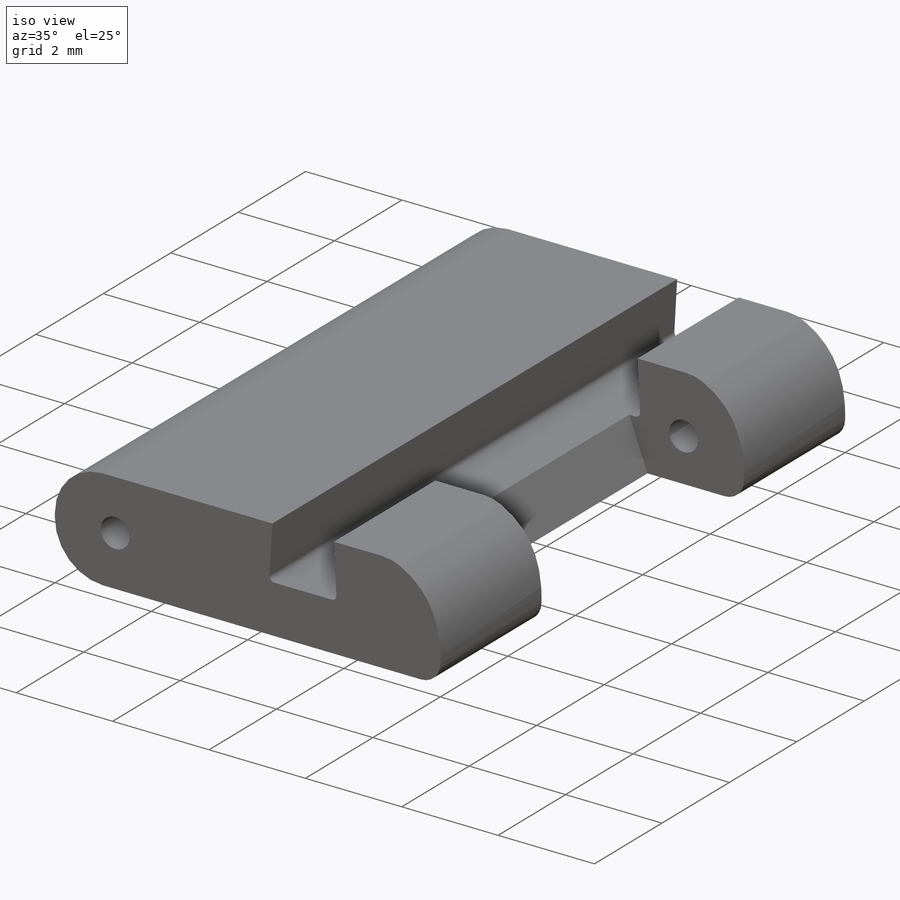
[diagram: iso view]
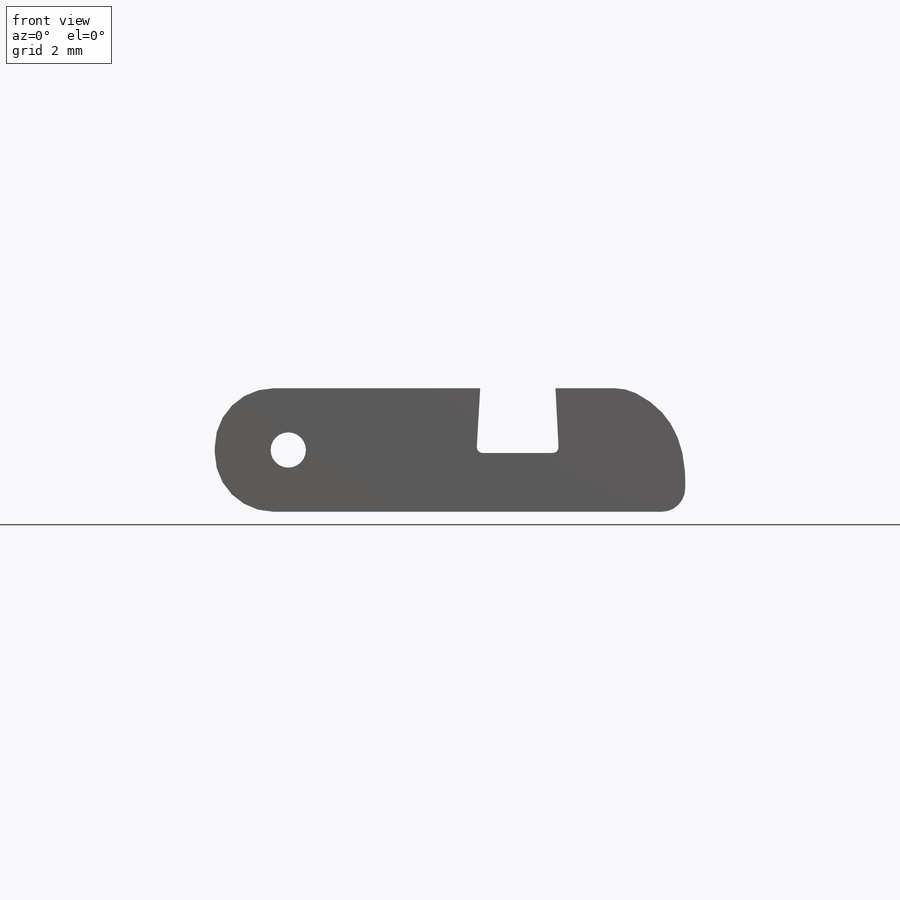
[diagram: front view]
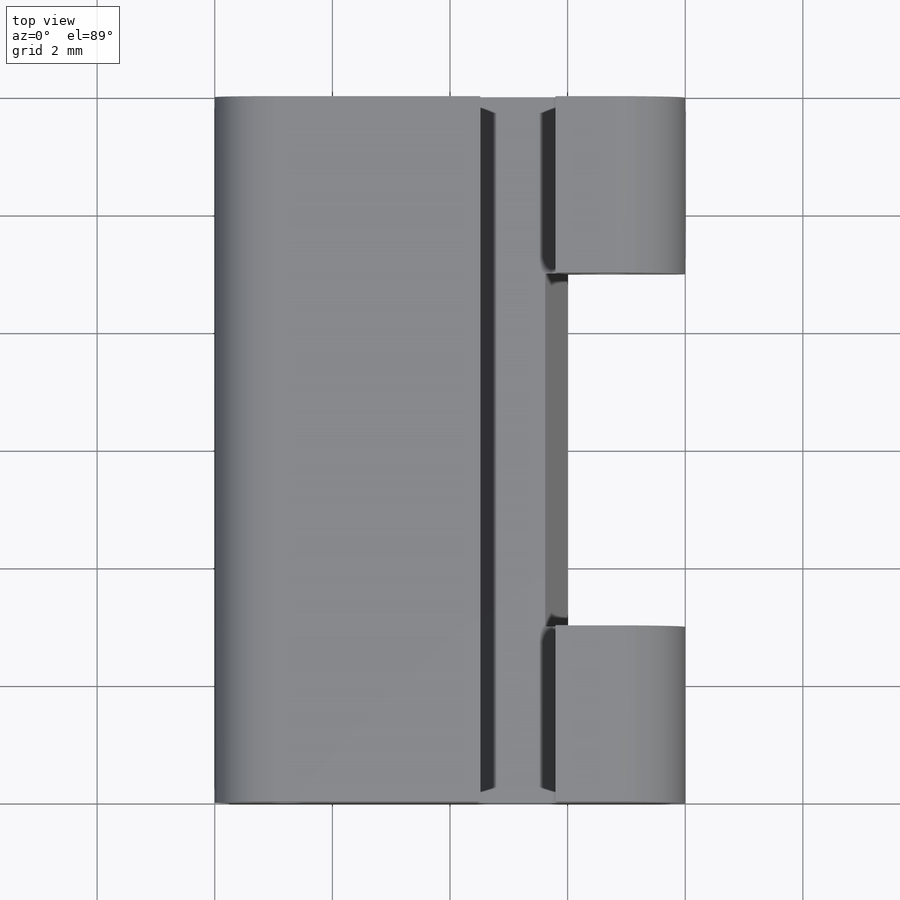
[diagram: top view]
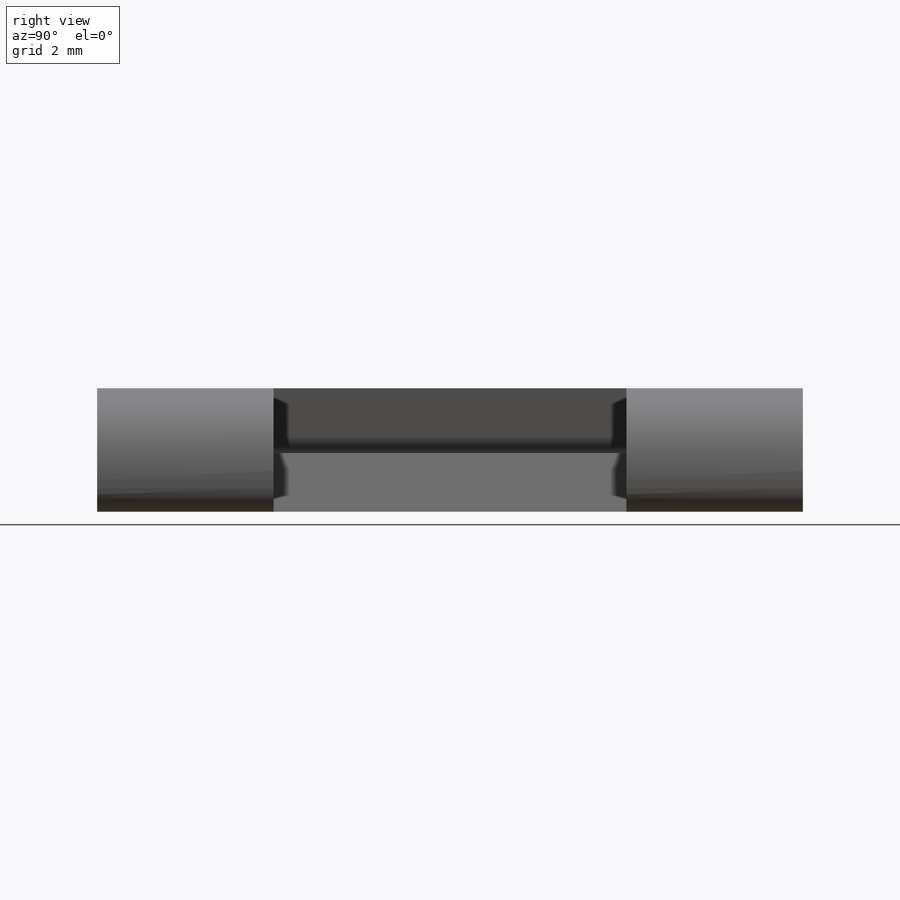
[diagram: right view]
SOLIDWORKS PART (.sldprt)
format: sldprt  version: not decoded by parser v0  size: 303,104 bytes
history: native  units: mm
features: sketch x8, cut_extrude x7, fillet x3, material x1, extrude x1 (+16 scaffold rows collapsed)
feature tree (36):
  scaffold x16  (default folders/planes/origin — collapsed)
  material  "Material <not specified>"
  sketch  "Sketch1"  dims[D1=12.0mm D2=8.0mm]
  extrude  "Boss-Extrude1"  Depth=2.1mm
  sketch  "Sketch2"  dims[D1=2.0mm D2=6.0mm D3=3.0mm]
  cut_extrude  "Cut-Extrude1"  Depth=2.1mm
  sketch  "Sketch3"  dims[c1.D1=0.1mm c1.D4=0.1mm c1.D2=1.4mm c1.D3=4.45mm c2.D2=1.4mm c2.D1=1.0mm c3.D2=1.4mm c3.D3=4.45mm]
  cut_extrude  "Cut-Extrude4"  [1 undecoded]
  sketch  "Sketch4"  dims[D1=1.0mm]
  cut_extrude  "Cut-Extrude5"  Depth=0.5mm
  sketch  "Sketch6"
  cut_extrude  "Cut-Extrude14"  Depth=6mm
  fillet  "Fillet1"  Radius=1mm
  fillet  "Fillet2"  Radius=0.4mm
  sketch  "Sketch7"
  cut_extrude  "Cut-Extrude15"  [1 undecoded]
  sketch  "Sketch8"  dims[c1.D1=~0.59858mm c1.D3=0.5mm c2.D1=1.25mm c2.D2=1.05mm]
  cut_extrude  "Cut-Extrude16"  [1 undecoded]
  sketch  "Sketch9"  dims[c1.D1=~0.609025mm c1.D3=0.5mm c2.D1=1.25mm c2.D2=0.9mm]
  cut_extrude  "Cut-Extrude17"  Depth=10mm
  fillet  "Fillet4"  Radius=0.8mm
decode coverage: 14 of 19 modeling features carry decoded parameters
note: ~ marks probable driven/reference dimensions
note: 3 parameter values undecoded
summary: no parameter record found for 3 features
note: suppression state not decoded; provenance and decode notes live in map.json
